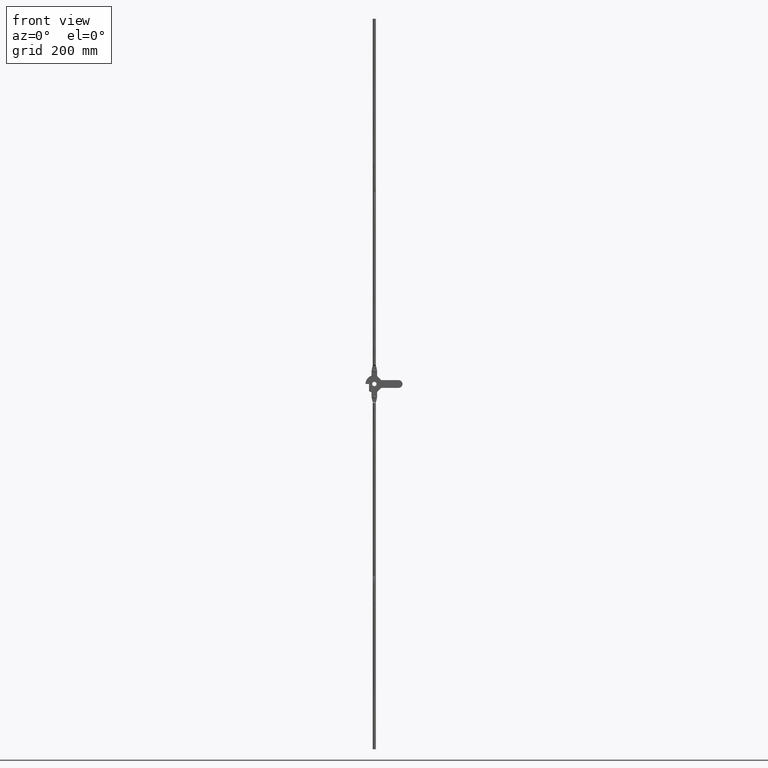
[diagram: clean part render]
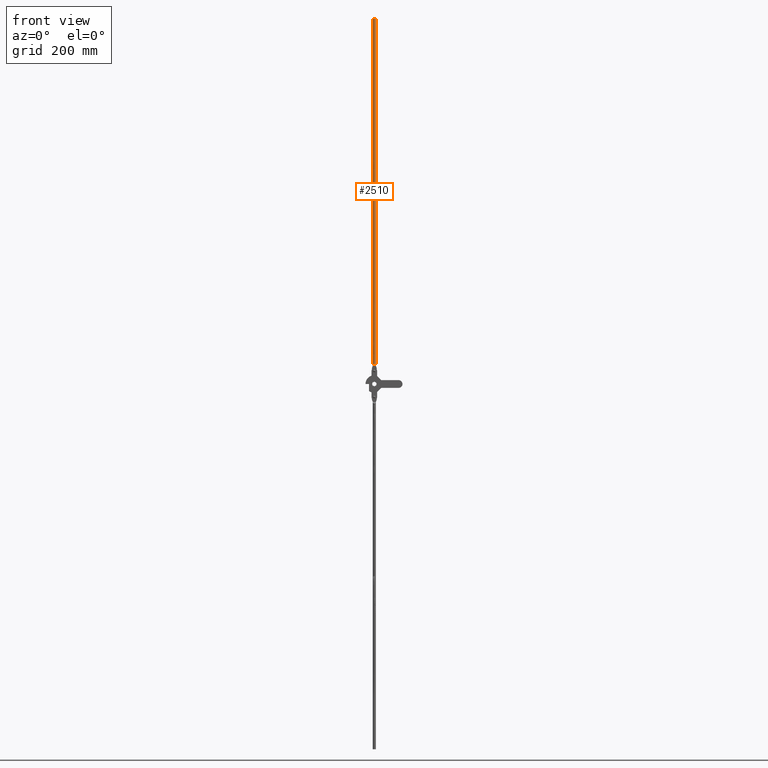
[diagram: same view with one face highlighted and labeled with its STEP entity id]
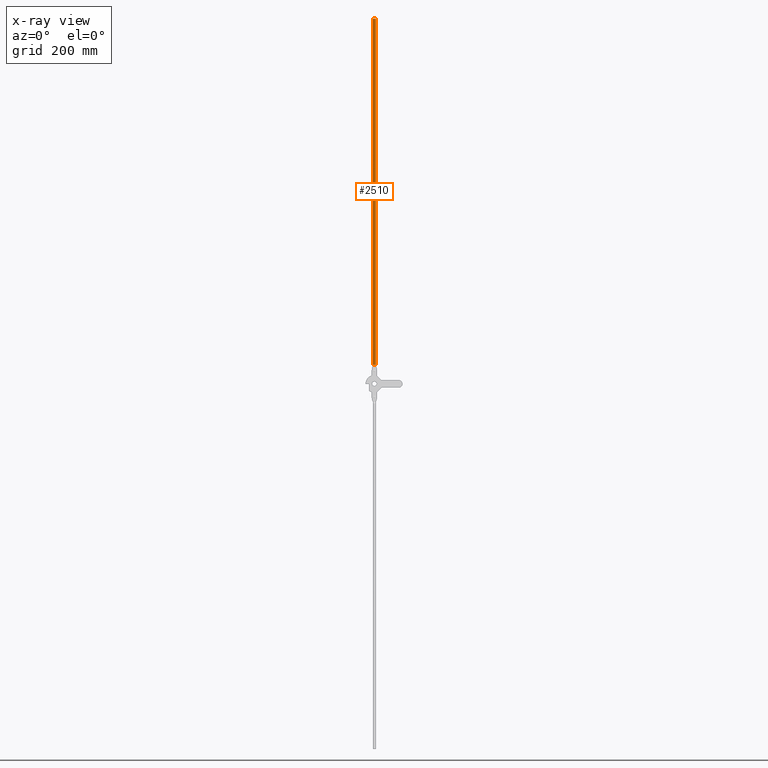
[diagram: x-ray of the same camera — body ghosted, the highlighted face saturated]
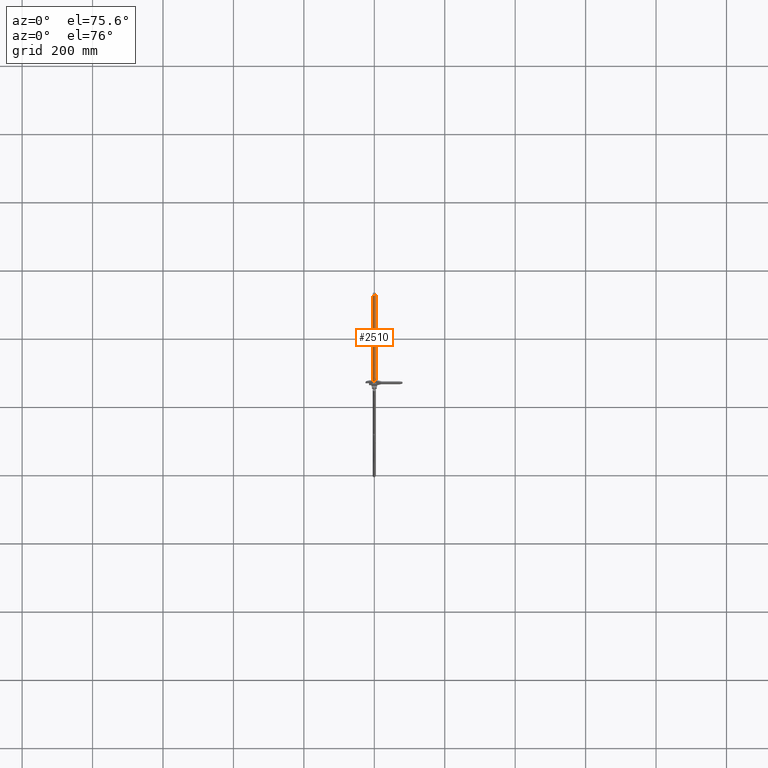
[diagram: same view with one face highlighted and labeled with its STEP entity id]
A machine part, front view. The second image highlights one B-rep face of the part: STEP entity #2510.
The next image is the same camera in x-ray: the body ghosted, the highlighted face saturated — about 0% of this face is hidden behind the body in this view.
A second angle (auxiliary view) of the same face is appended — the face is thin or edge-on in the first view.
In plain terms, the highlighted face is a freeform B-spline surface patch.
Its self-contained STEP definition (entity closure, byte-faithful):
#2059=CARTESIAN_POINT('',(-4.486127999967517,-7.346934045952233,1037.003999999999900));
#2060=VERTEX_POINT('',#2059);
#2074=CARTESIAN_POINT('',(-5.637851E-014,-12.199999999999999,1037.003999999999900));
#2075=VERTEX_POINT('',#2074);
#2076=CARTESIAN_POINT('',(-4.486127999967549,-7.346934045952231,1037.003999999999900));
#2077=CARTESIAN_POINT('',(-4.500000000000056,-7.523194506775253,1037.003999999999700));
#2078=CARTESIAN_POINT('',(-4.500000000000056,-7.700000000000000,1037.003999999999900));
#2079=CARTESIAN_POINT('',(-4.500000000000056,-12.199999999999998,1037.004000000000100));
#2080=CARTESIAN_POINT('',(-5.637851E-014,-12.199999999999999,1037.003999999999900));
#2088=(BOUNDED_CURVE()B_SPLINE_CURVE(2,(#2076,#2077,#2078,#2079,#2080),.UNSPECIFIED.,.F.,.U.)B_SPLINE_CURVE_WITH_KNOTS((3,2,3),(0.236331299743477,0.250000000000000,0.500000000000000),.UNSPECIFIED.)CURVE()GEOMETRIC_REPRESENTATION_ITEM()RATIONAL_B_SPLINE_CURVE((0.969723354315934,0.983986121539482,1.0,0.707106781186547,1.0))REPRESENTATION_ITEM(''));
#2089=EDGE_CURVE('',#2060,#2075,#2088,.T.);
#2091=CARTESIAN_POINT('',(4.486127999967467,-8.053065954047764,1037.003999999999900));
#2092=VERTEX_POINT('',#2091);
#2093=CARTESIAN_POINT('',(-5.637851E-014,-12.199999999999999,1037.003999999999900));
#2094=CARTESIAN_POINT('',(4.159757190815786,-12.199999999999999,1037.004000000000100));
#2095=CARTESIAN_POINT('',(4.486127999967437,-8.053065954047760,1037.004000000000100));
#2103=(BOUNDED_CURVE()B_SPLINE_CURVE(2,(#2093,#2094,#2095),.UNSPECIFIED.,.F.,.U.)B_SPLINE_CURVE_WITH_KNOTS((3,3),(0.500000000000000,0.736331299743477),.UNSPECIFIED.)CURVE()GEOMETRIC_REPRESENTATION_ITEM()RATIONAL_B_SPLINE_CURVE((1.0,0.723120659647065,0.969723354315935))REPRESENTATION_ITEM(''));
#2104=EDGE_CURVE('',#2075,#2092,#2103,.T.);
#2326=CARTESIAN_POINT('',(-4.486130706923814,-7.346934913627599,51.649709082939012));
#2327=VERTEX_POINT('',#2326);
#2371=CARTESIAN_POINT('',(-4.486127999967517,-7.346934045952233,1037.003999999999900));
#2372=CARTESIAN_POINT('',(-4.486130706923814,-7.346934913627599,51.649709082939012));
#2373=QUASI_UNIFORM_CURVE('',1,(#2371,#2372),.UNSPECIFIED.,.F.,.U.);
#2374=EDGE_CURVE('',#2060,#2327,#2373,.T.);
#2378=CARTESIAN_POINT('',(4.486127944394353,-8.053065909465119,51.649724650867093));
#2379=VERTEX_POINT('',#2378);
#2380=CARTESIAN_POINT('',(4.486127999967467,-8.053065954047764,1037.003999999999900));
#2381=CARTESIAN_POINT('',(4.486127944394353,-8.053065909465119,51.649724650867093));
#2382=QUASI_UNIFORM_CURVE('',1,(#2380,#2381),.UNSPECIFIED.,.F.,.U.);
#2383=EDGE_CURVE('',#2092,#2379,#2382,.T.);
#2438=CARTESIAN_POINT('',(4.486128001799083,-8.053065930775244,1061.638195072248900));
#2439=CARTESIAN_POINT('',(4.133062071023841,-12.539193932574323,1061.638195072248900));
#2440=CARTESIAN_POINT('',(-0.353065930775239,-12.186128001799080,1061.638195072248900));
#2441=CARTESIAN_POINT('',(-4.839193932574316,-11.833062071023836,1061.638195072248900));
#2442=CARTESIAN_POINT('',(-4.486128001799075,-7.346934069224758,1061.638195072248900));
#2443=CARTESIAN_POINT('',(4.486128001799142,-8.053065930775244,26.386147160999030));
#2444=CARTESIAN_POINT('',(4.133062071023899,-12.539193932574323,26.386147160999023));
#2445=CARTESIAN_POINT('',(-0.353065930775180,-12.186128001799080,26.386147160999030));
#2446=CARTESIAN_POINT('',(-4.839193932574259,-11.833062071023836,26.386147160999023));
#2447=CARTESIAN_POINT('',(-4.486128001799016,-7.346934069224758,26.386147160999030));
#2455=(BOUNDED_SURFACE()B_SPLINE_SURFACE(2,1,((#2438,#2443),(#2439,#2444),(#2440,#2445),(#2441,#2446),(#2442,#2447)),.UNSPECIFIED.,.F.,.F.,.U.)B_SPLINE_SURFACE_WITH_KNOTS((3,2,3),(2,2),(0.0,7.455844122715709,14.911688245431421),(0.0,1035.252047911250000),.UNSPECIFIED.)GEOMETRIC_REPRESENTATION_ITEM()RATIONAL_B_SPLINE_SURFACE(((1.0,1.0),(0.707106781186548,0.707106781186548),(1.0,1.0),(0.707106781186548,0.707106781186548),(1.0,1.0)))REPRESENTATION_ITEM('')SURFACE());
#2456=CARTESIAN_POINT('',(-4.416463181817520,-8.563048645008088,51.863048645008107));
#2457=VERTEX_POINT('',#2456);
#2458=CARTESIAN_POINT('',(-4.486130706923814,-7.346934913627599,51.649709082939012));
#2459=CARTESIAN_POINT('',(-4.489277159588139,-7.386936729587856,51.639952006740778));
#2460=CARTESIAN_POINT('',(-4.491921344550894,-7.427413264587423,51.631734696650867));
#2461=CARTESIAN_POINT('',(-4.497275632783683,-7.531304004571744,51.615085302828007));
#2462=CARTESIAN_POINT('',(-4.499244198846466,-7.595602404254594,51.608948896620113));
#2463=CARTESIAN_POINT('',(-4.500391898926946,-7.723928062490086,51.605373382665412));
#2464=CARTESIAN_POINT('',(-4.499573173370024,-7.788417481926397,51.607927867951453));
#2465=CARTESIAN_POINT('',(-4.493188948722559,-7.977868313382385,51.627807310787247));
#2466=CARTESIAN_POINT('',(-4.483762342874667,-8.100372207682508,51.657160181874332));
#2467=CARTESIAN_POINT('',(-4.462951314713640,-8.279368371073772,51.721311996733697));
#2468=CARTESIAN_POINT('',(-4.454887315544647,-8.338226955290963,51.746088970582669));
#2469=CARTESIAN_POINT('',(-4.436971795033183,-8.452753829140679,51.800841436803772));
#2470=CARTESIAN_POINT('',(-4.427103505862043,-8.508598449042220,51.830868366578258));
#2471=CARTESIAN_POINT('',(-4.416463181817520,-8.563048645008088,51.863048645008107));
#2472=B_SPLINE_CURVE_WITH_KNOTS('',3,(#2458,#2459,#2460,#2461,#2462,#2463,#2464,#2465,#2466,#2467,#2468,#2469,#2470,#2471),.UNSPECIFIED.,.F.,.U.,(4,2,2,2,2,2,4),(0.896070064359491,0.906249999999999,0.921874999999999,0.937500000000000,0.968750000000000,0.984375000000000,1.0),.UNSPECIFIED.);
#2473=EDGE_CURVE('',#2327,#2457,#2472,.T.);
#2474=ORIENTED_EDGE('',*,*,#2473,.T.);
#2475=CARTESIAN_POINT('',(4.416463181817520,-8.563048645008088,51.863048645008107));
#2476=VERTEX_POINT('',#2475);
#2477=CARTESIAN_POINT('',(4.416463181817520,-8.563048645008088,51.863048645008107));
#2478=CARTESIAN_POINT('',(4.332225385772826,-8.993197762846359,52.293197762846319));
#2479=CARTESIAN_POINT('',(4.037023204123625,-9.842062701210805,53.142062701210818));
#2480=CARTESIAN_POINT('',(3.175492839873021,-11.006856849703940,54.306856849703941));
#2481=CARTESIAN_POINT('',(2.053020678327429,-11.777326976293629,55.077326976293627));
#2482=CARTESIAN_POINT('',(0.920816273202743,-12.136156680484911,55.436156680484892));
#2483=CARTESIAN_POINT('',(-0.076955254884288,-12.240305762071239,55.540305762071327));
#2484=CARTESIAN_POINT('',(-1.150658221588118,-12.099118995830100,55.399118995830051));
#2485=CARTESIAN_POINT('',(-2.095312592641437,-11.719292064230430,55.019292064230527));
#2486=CARTESIAN_POINT('',(-3.048853770053056,-11.081760338984139,54.381760338983838));
#2487=CARTESIAN_POINT('',(-3.944371396504082,-10.053640934206859,53.353640934207611));
#2488=CARTESIAN_POINT('',(-4.310929971918312,-9.100413842647889,52.400413842647453));
#2489=CARTESIAN_POINT('',(-4.416463181817520,-8.563048645008088,51.863048645008107));
#2490=B_SPLINE_CURVE_WITH_KNOTS('',3,(#2477,#2478,#2479,#2480,#2481,#2482,#2483,#2484,#2485,#2486,#2487,#2488,#2489),.UNSPECIFIED.,.F.,.U.,(4,1,1,1,1,1,1,1,1,1,4),(0.001889966207690,1.844668977563263,3.687981255640016,5.530158388779192,6.451790828400439,7.372747665306292,8.524092425879804,9.675363193856452,10.596801992946050,12.439985313468020,14.743568288469350),.UNSPECIFIED.);
#2491=EDGE_CURVE('',#2476,#2457,#2490,.T.);
#2492=ORIENTED_EDGE('',*,*,#2491,.F.);
#2493=CARTESIAN_POINT('',(4.416463181817520,-8.563048645008088,51.863048645008107));
#2494=CARTESIAN_POINT('',(4.437682231451955,-8.454464856584474,51.798875328030533));
#2495=CARTESIAN_POINT('',(4.455656911547033,-8.341450978975809,51.743794429102962));
#2496=CARTESIAN_POINT('',(4.473036537927574,-8.192788620514355,51.690227873637248));
#2497=CARTESIAN_POINT('',(4.476255632387248,-8.162682909255683,51.680286004312258));
#2498=CARTESIAN_POINT('',(4.481724735393579,-8.105999146648435,51.663370466716437));
#2499=CARTESIAN_POINT('',(4.484043318306293,-8.079548521604391,51.656188521393481));
#2500=CARTESIAN_POINT('',(4.486127944394353,-8.053065909465119,51.649724650867093));
#2501=B_SPLINE_CURVE_WITH_KNOTS('',3,(#2493,#2494,#2495,#2496,#2497,#2498,#2499,#2500),.UNSPECIFIED.,.F.,.U.,(4,2,2,4),(0.0,0.031249999999998,0.039062499999998,0.045764548459738),.UNSPECIFIED.);
#2502=EDGE_CURVE('',#2476,#2379,#2501,.T.);
#2503=ORIENTED_EDGE('',*,*,#2502,.T.);
#2504=ORIENTED_EDGE('',*,*,#2383,.F.);
#2505=ORIENTED_EDGE('',*,*,#2104,.F.);
#2506=ORIENTED_EDGE('',*,*,#2089,.F.);
#2507=ORIENTED_EDGE('',*,*,#2374,.T.);
#2508=EDGE_LOOP('',(#2474,#2492,#2503,#2504,#2505,#2506,#2507));
#2509=FACE_OUTER_BOUND('',#2508,.T.);
#2510=ADVANCED_FACE('',(#2509),#2455,.T.);